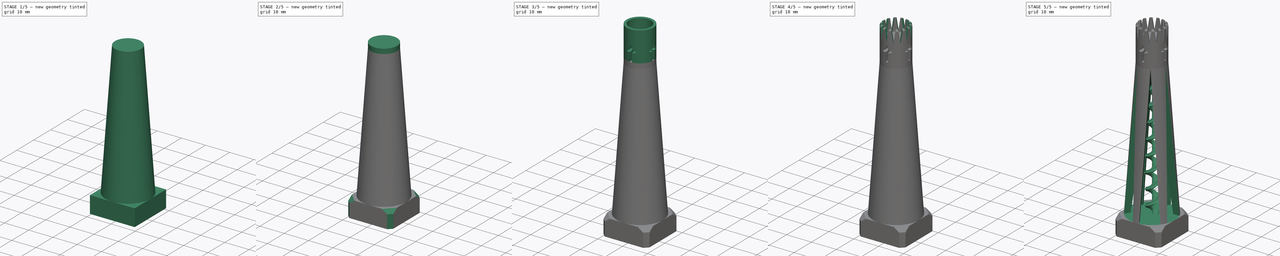
[diagram: build sequence overview — one tinted view per stage of 5, left to right]
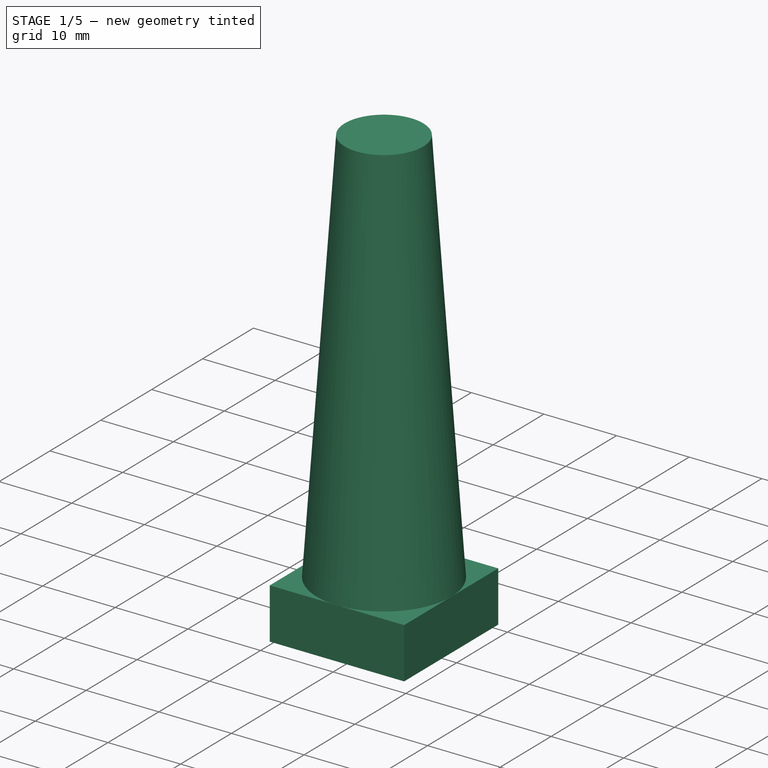
[diagram: stage 1 of 5 — iso view after this stage's code; geometry added in this stage tinted green]
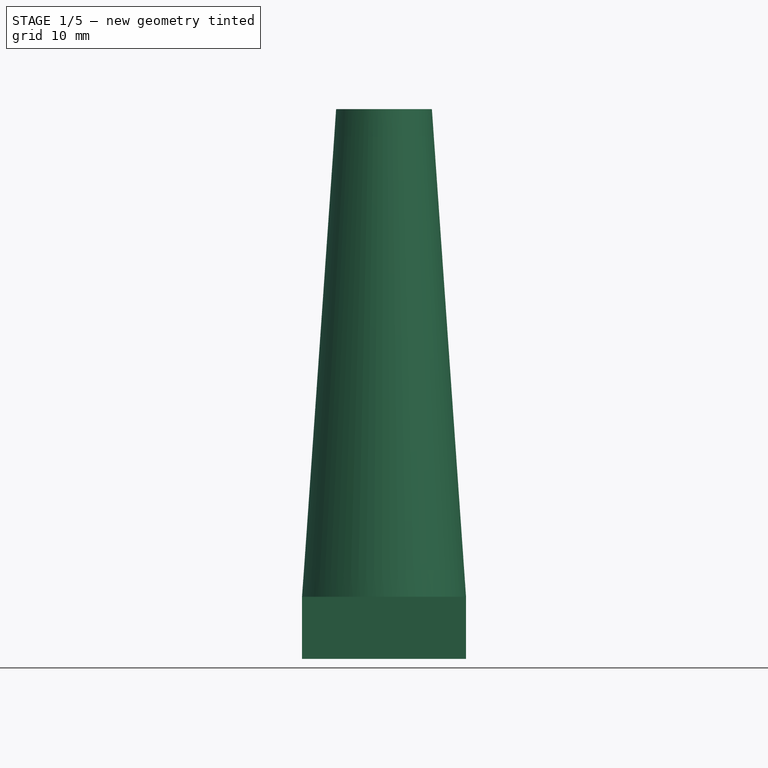
[diagram: stage 1 of 5 — front view after this stage's code; geometry added in this stage tinted green]
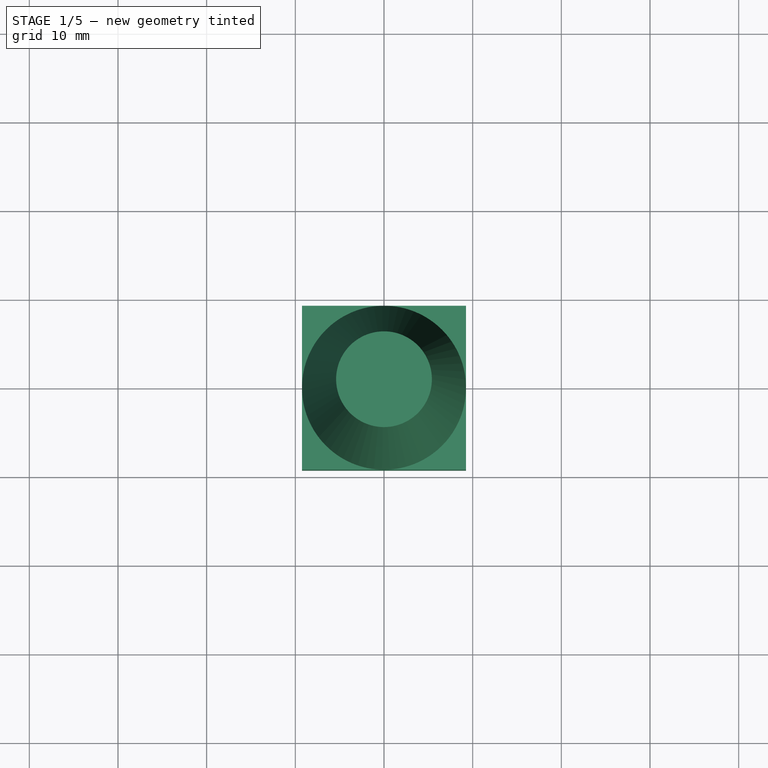
[diagram: stage 1 of 5 — top view after this stage's code; geometry added in this stage tinted green]
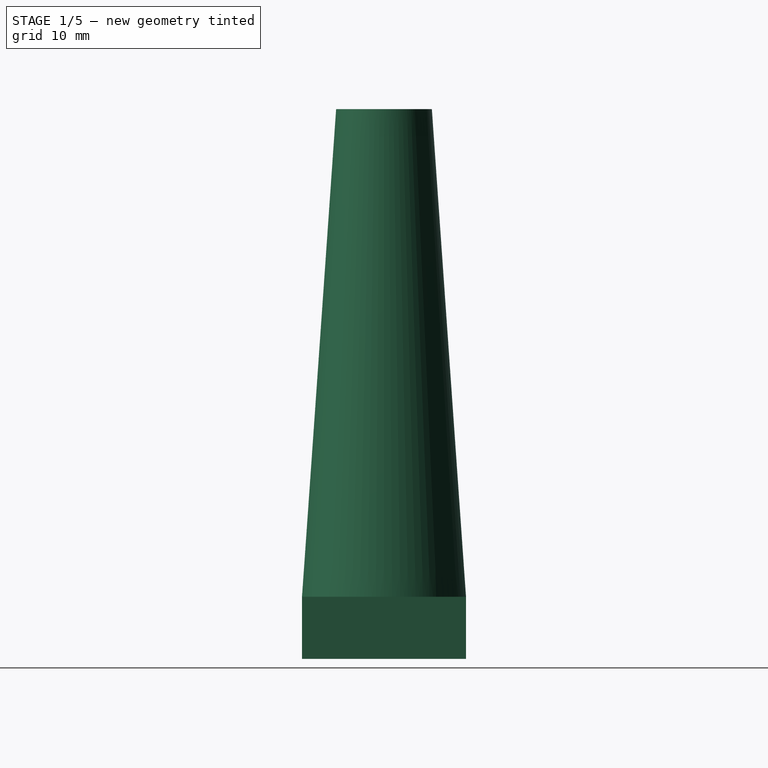
[diagram: stage 1 of 5 — right view after this stage's code; geometry added in this stage tinted green]
FCSTD DOCUMENT  (FreeCAD 0.21R33771 (Git))
Label: NewKing2
License: All rights reserved
LicenseURL: http://en.wikipedia.org/wiki/All_rights_reserved
objects: Sketcher::SketchObject×11, PartDesign::Pad×4, PartDesign::Pocket×4, PartDesign::Chamfer×3, PartDesign::PolarPattern×3, Spreadsheet::Sheet×1, PartDesign::AdditiveLoft×1, PartDesign::AdditiveHelix×1, PartDesign::Body×1, App::Part×1
note: 41 computed .brp shape members not serialized (recipe doc carries the construction recipe); baked Part::Feature solids carry a one-line shape summary decoded from their .brp

FEATURE [Spreadsheet::Sheet] Spreadsheet  label="s"
  cells = A1='base_hole; B1(base_hole)=16; A2='base_clearance; B2(base_clearance)=0.3; A3='base_depth; B3(base_depth)=3.9; A4='base_spacer_depth; B4(base_spacer_depth)=3.1; A5='base_chamfer; B5(base_chamfer)=1.5; A6='base_total_depth; B6(base_total_depth)==B3 + base_spacer_depth * 2; A8='body_height; B8(body_height)=55; A10='base_wall; B10(base_wall)=2.5; A12='loft_top; B12(loft_top)=2; A14='platform_diameter; B14(platform_diameter)=10.8; A15='platform_offset; B15(platform_offset)=2.09; A16='platform_depth; B16(platform_depth)=2; A17='tower_space; B17(tower_space)=7
FEATURE [Sketcher::SketchObject] Sketch
  FullyConstrained = true
  MapMode = 5
  expr: Constraints[10] = <<s>>.base_hole + <<s>>.base_wall
  expr: Constraints[11] = <<s>>.base_hole + <<s>>.base_wall
  expr: Constraints[1] = <<s>>.base_hole + <<s>>.base_clearance
  sketch-geometry (5):
    g0: Circle CenterX=0 CenterY=0 CenterZ=0 NormalX=0 NormalY=0 NormalZ=1 AngleXU=0 Radius=8.15
    g1: LineSegment StartX=-9.25 StartY=9.25 StartZ=0 EndX=9.25 EndY=9.25 EndZ=0
    g2: LineSegment StartX=9.25 StartY=9.25 StartZ=0 EndX=9.25 EndY=-9.25 EndZ=0
    g3: LineSegment StartX=9.25 StartY=-9.25 StartZ=0 EndX=-9.25 EndY=-9.25 EndZ=0
    g4: LineSegment StartX=-9.25 StartY=-9.25 StartZ=0 EndX=-9.25 EndY=9.25 EndZ=0
  constraints (13):
    c: Coincident(g0,g-1)
    c: Diameter(g0) = 16.3
    c: Coincident(g1,g2)
    c: Coincident(g2,g3)
    c: Coincident(g3,g4)
    c: Coincident(g4,g1)
    c: Horizontal(g1)
    c: Horizontal(g3)
    c: Vertical(g2)
    c: Vertical(g4)
    c: DistanceY(g4,g4) = 18.5
    c: DistanceX(g1,g1) = 18.5
    c: Symmetric(g1,g3,g0)
FEATURE [PartDesign::Pad] Pad  label="BasePad"
  Direction = (0,0,1)
  Length = 3.9
  Length2 = 10
  Profile = -> Sketch
  ReferenceAxis = -> Sketch [N_Axis]
  Type = 0
  expr: Length = <<s>>.base_depth
FEATURE [Sketcher::SketchObject] Sketch001
  FullyConstrained = true
  MapMode = 5
  Placement = pos=(0,0,3.9) rot=(0,0,1;0rad)
  Support = -> [Pad]
  expr: Constraints[8] = <<s>>.base_hole + <<s>>.base_wall
  expr: Constraints[9] = <<s>>.base_hole + <<s>>.base_wall
  sketch-geometry (4):
    g0: LineSegment StartX=-9.25 StartY=9.25 StartZ=0 EndX=9.25 EndY=9.25 EndZ=0
    g1: LineSegment StartX=9.25 StartY=9.25 StartZ=0 EndX=9.25 EndY=-9.25 EndZ=0
    g2: LineSegment StartX=9.25 StartY=-9.25 StartZ=0 EndX=-9.25 EndY=-9.25 EndZ=0
    g3: LineSegment StartX=-9.25 StartY=-9.25 StartZ=0 EndX=-9.25 EndY=9.25 EndZ=0
  constraints (11):
    c: Coincident(g0,g1)
    c: Coincident(g1,g2)
    c: Coincident(g2,g3)
    c: Coincident(g3,g0)
    c: Horizontal(g0)
    c: Horizontal(g2)
    c: Vertical(g1)
    c: Vertical(g3)
    c: DistanceY(g3,g3) = 18.5
    c: DistanceX(g0,g0) = 18.5
    c: Symmetric(g0,g2,g-1)
FEATURE [PartDesign::Pad] Pad001  label="BaseTopper"
  BaseFeature = -> Pad
  Direction = (0,0,1)
  Length = 3.1
  Length2 = 10
  Profile = -> Sketch001
  ReferenceAxis = -> Sketch001 [N_Axis]
  Type = 0
  expr: Length = <<s>>.base_spacer_depth
FEATURE [Sketcher::SketchObject] Sketch002
  FullyConstrained = true
  MapMode = 5
  Placement = pos=(0,0,7) rot=(0,0,1;0rad)
  Support = -> [Pad001]
  expr: Constraints[1] = <<s>>.base_hole + <<s>>.base_wall
  sketch-geometry (1):
    g0: Circle CenterX=0 CenterY=0 CenterZ=0 NormalX=0 NormalY=0 NormalZ=1 AngleXU=0 Radius=9.25
  constraints (2):
    c: Coincident(g0,g-1)
    c: Diameter(g0) = 18.5
FEATURE [Sketcher::SketchObject] Sketch003
  AttachmentOffset = pos=(0,0,55) rot=(0,0,1;0rad)
  FullyConstrained = true
  MapMode = 5
  Placement = pos=(0,0,62) rot=(0,0,1;0rad)
  Support = -> [Pad001]
  expr: .AttachmentOffset.Base.z = Spreadsheet.body_height
  expr: Constraints[1] = <<s>>.platform_diameter
  sketch-geometry (1):
    g0: Circle CenterX=0 CenterY=0 CenterZ=0 NormalX=0 NormalY=0 NormalZ=1 AngleXU=0 Radius=5.4
  constraints (2):
    c: Coincident(g0,g-1)
    c: Diameter(g0) = 10.8
FEATURE [PartDesign::AdditiveLoft] AdditiveLoft  label="TowerRise"
  BaseFeature = -> Pad001
  Closed = false
  Profile = -> Sketch002
  Ruled = false
  Sections = -> [Sketch003]
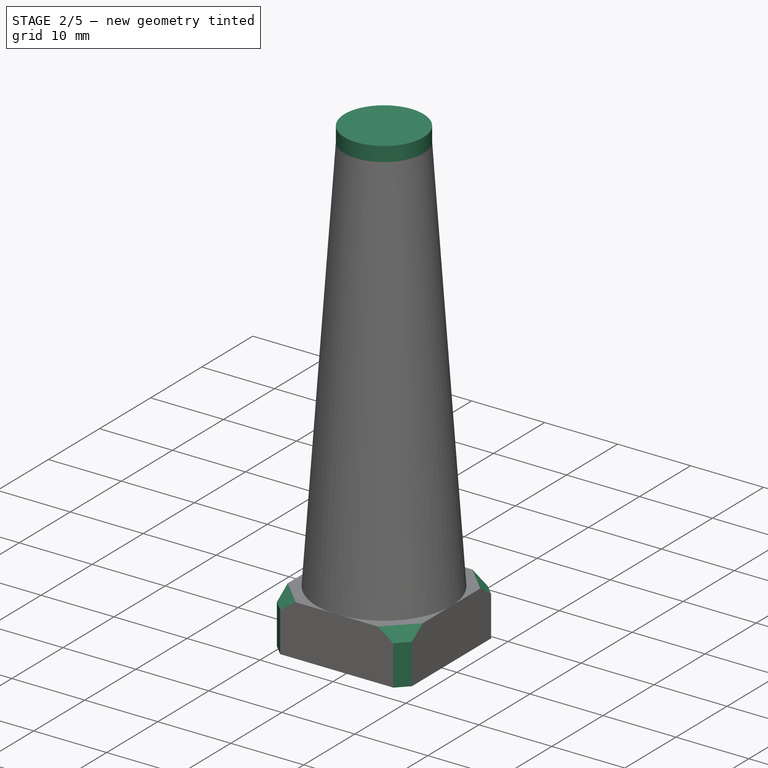
[diagram: stage 2 of 5 — iso view after this stage's code; geometry added in this stage tinted green]
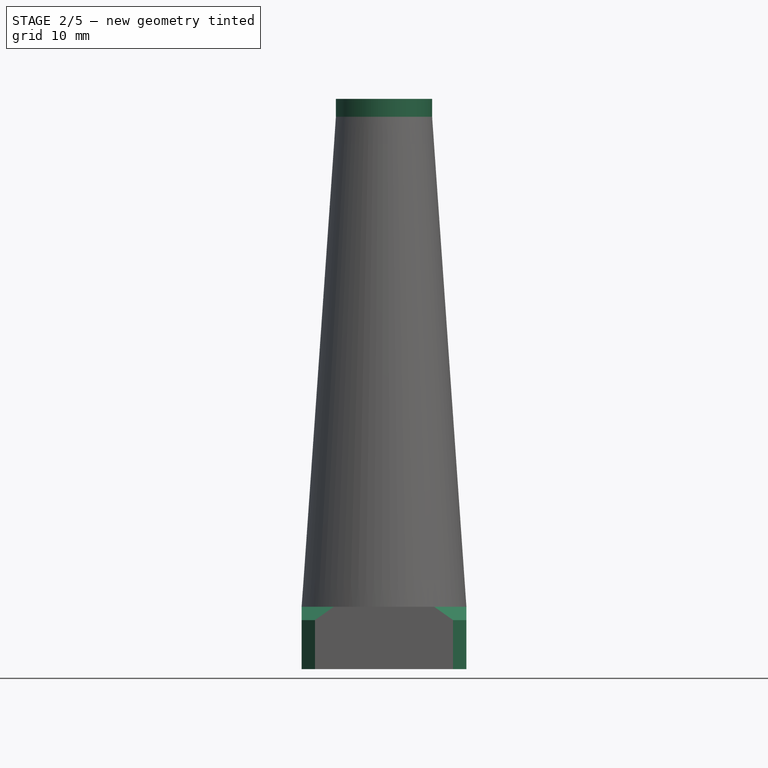
[diagram: stage 2 of 5 — front view after this stage's code; geometry added in this stage tinted green]
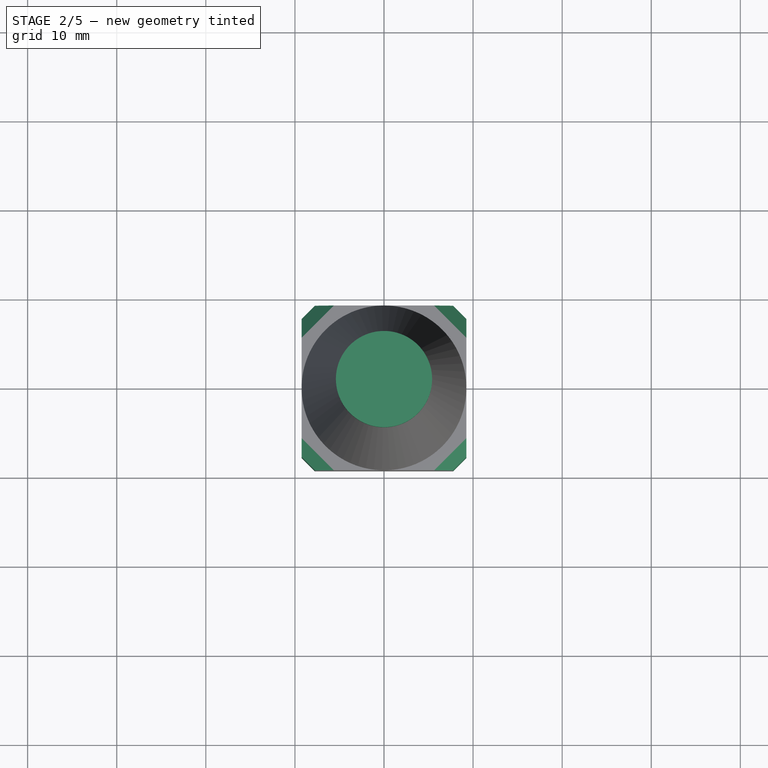
[diagram: stage 2 of 5 — top view after this stage's code; geometry added in this stage tinted green]
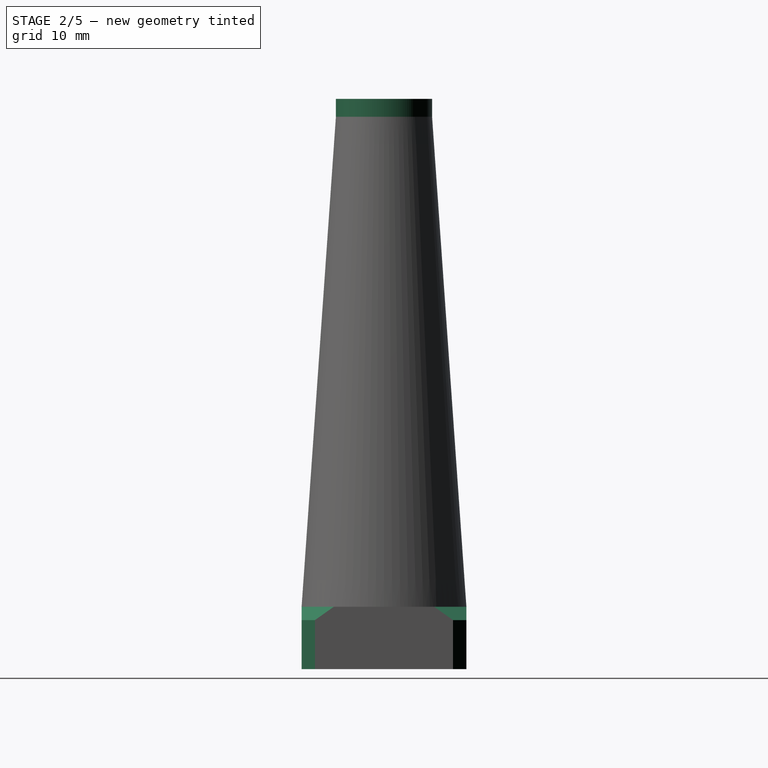
[diagram: stage 2 of 5 — right view after this stage's code; geometry added in this stage tinted green]
FEATURE [Sketcher::SketchObject] Sketch005
  FullyConstrained = true
  MapMode = 5
  Placement = pos=(0,0,62) rot=(0,0,1;0rad)
  expr: Constraints[1] = <<s>>.platform_diameter
  sketch-geometry (1):
    g0: Circle CenterX=0 CenterY=0 CenterZ=0 NormalX=0 NormalY=0 NormalZ=1 AngleXU=0 Radius=5.4
  constraints (2):
    c: Coincident(g0,g-1)
    c: Diameter(g0) = 10.8
FEATURE [PartDesign::Pad] Pad002  label="PlatformPad"
  BaseFeature = -> AdditiveLoft
  Direction = (0,0,1)
  Length = 2
  Length2 = 10
  Profile = -> Sketch005
  ReferenceAxis = -> Sketch005 [N_Axis]
  Type = 0
  expr: Length = <<s>>.platform_depth
FEATURE [PartDesign::Chamfer] Chamfer  label="BaseEdgeChamfer"
  Angle = 45
  Base = -> Pad002 [Edge8,Edge21,Edge18,Edge5,Edge1,Edge13,Edge2,Edge14]
  BaseFeature = -> Pad002
  ChamferType = 0
  FlipDirection = false
  Size = 1.5
  Size2 = 1
  SupportTransform = false
  UseAllEdges = false
  expr: Size = <<s>>.base_chamfer
FEATURE [PartDesign::Chamfer] Chamfer001  label="BaseTopEdgeChamfer"
  Angle = 45
  Base = -> Chamfer [Edge35,Edge33,Edge47,Edge45]
  BaseFeature = -> Chamfer
  ChamferType = 0
  FlipDirection = false
  Size = 1.5
  Size2 = 1
  SupportTransform = false
  UseAllEdges = false
  expr: Size = <<s>>.base_chamfer
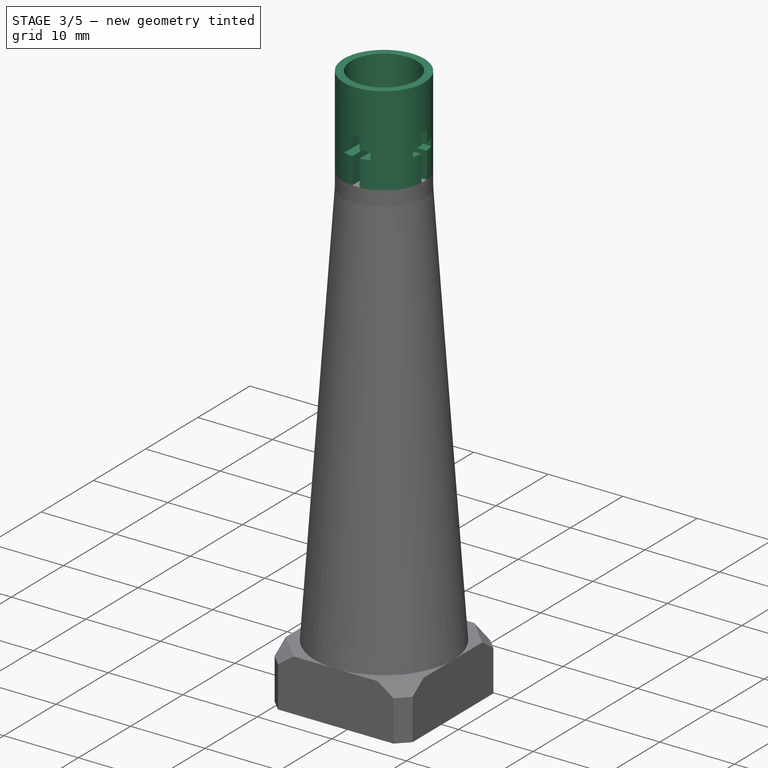
[diagram: stage 3 of 5 — iso view after this stage's code; geometry added in this stage tinted green]
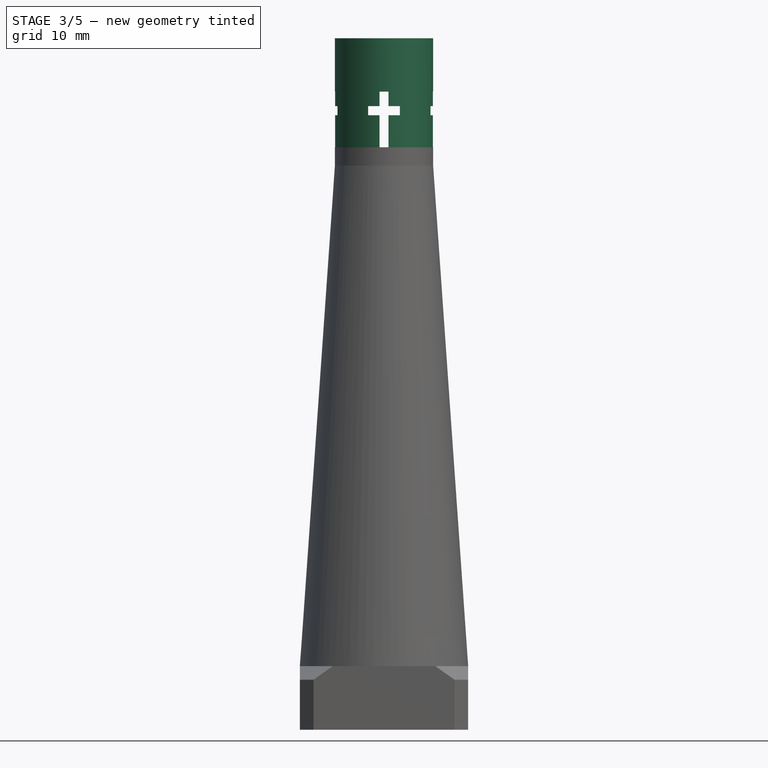
[diagram: stage 3 of 5 — front view after this stage's code; geometry added in this stage tinted green]
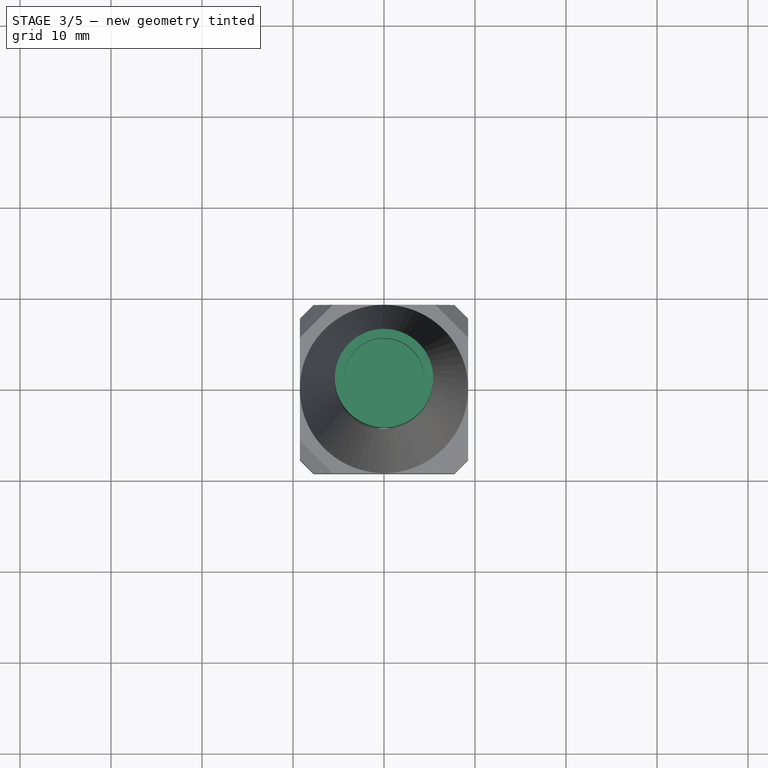
[diagram: stage 3 of 5 — top view after this stage's code; geometry added in this stage tinted green]
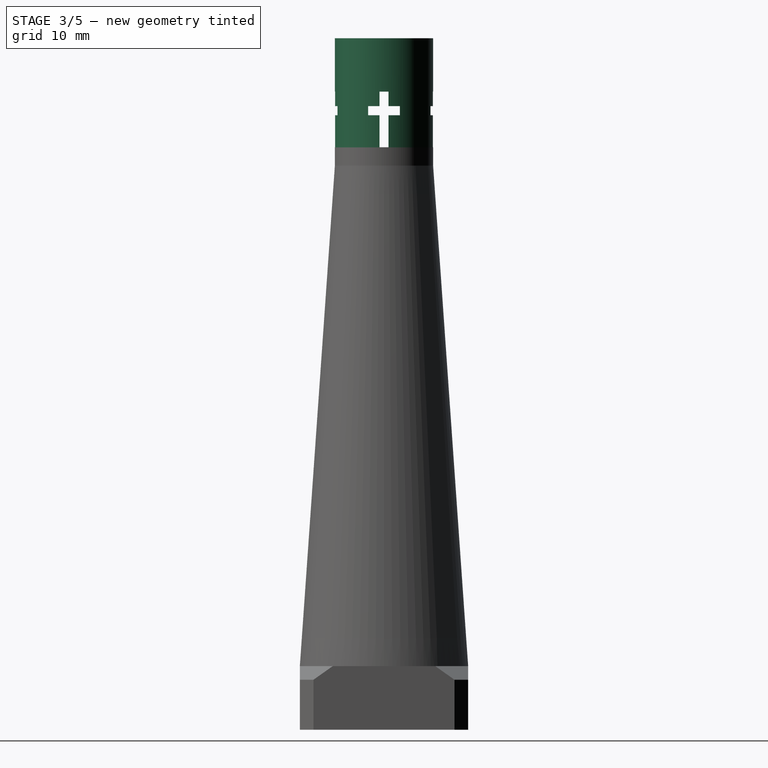
[diagram: stage 3 of 5 — right view after this stage's code; geometry added in this stage tinted green]
FEATURE [Sketcher::SketchObject] Sketch006
  FullyConstrained = true
  MapMode = 5
  Placement = pos=(0,0,64) rot=(0,0,1;0rad)
  Support = -> [Chamfer001]
  expr: Constraints[1] = <<s>>.platform_diameter
  sketch-geometry (1):
    g0: Circle CenterX=0 CenterY=0 CenterZ=0 NormalX=0 NormalY=0 NormalZ=1 AngleXU=0 Radius=5.4
  constraints (2):
    c: Coincident(g0,g-1)
    c: Diameter(g0) = 10.8
FEATURE [PartDesign::Pad] Pad003  label="KingsCrownPad"
  BaseFeature = -> Chamfer001
  Direction = (0,0,1)
  Length = 12
  Length2 = 10
  Profile = -> Sketch006
  ReferenceAxis = -> Sketch006 [N_Axis]
  Type = 0
FEATURE [Sketcher::SketchObject] Sketch011
  FullyConstrained = true
  MapMode = 5
  Placement = pos=(-9.25,0,0) rot=(0.57735,-0.57735,-0.57735;2.0944rad)
  Support = -> [Pad003]
  sketch-geometry (12):
    g0: LineSegment StartX=-0.5 StartY=70.126 StartZ=0 EndX=0.5 EndY=70.126 EndZ=0
    g1: LineSegment StartX=0.5 StartY=70.126 StartZ=0 EndX=0.5 EndY=68.536 EndZ=0
    g2: LineSegment StartX=0.5 StartY=64.012 StartZ=0 EndX=-0.5 EndY=64.012 EndZ=0
    g3: LineSegment StartX=-0.5 StartY=64.012 StartZ=0 EndX=-0.5 EndY=67.536 EndZ=0
    g4: LineSegment StartX=-1.75 StartY=68.536 StartZ=0 EndX=-0.5 EndY=68.536 EndZ=0
    g5: LineSegment StartX=1.75 StartY=68.536 StartZ=0 EndX=1.75 EndY=67.536 EndZ=0
    g6: LineSegment StartX=1.75 StartY=67.536 StartZ=0 EndX=0.5 EndY=67.536 EndZ=0
    g7: LineSegment StartX=-1.75 StartY=67.536 StartZ=0 EndX=-1.75 EndY=68.536 EndZ=0
    g8: LineSegment StartX=0.5 StartY=68.536 StartZ=0 EndX=1.75 EndY=68.536 EndZ=0
    g9: LineSegment StartX=0.5 StartY=67.536 StartZ=0 EndX=0.5 EndY=64.012 EndZ=0
    g10: LineSegment StartX=-0.5 StartY=68.536 StartZ=0 EndX=-0.5 EndY=70.126 EndZ=0
    g11: LineSegment StartX=-0.5 StartY=67.536 StartZ=0 EndX=-1.75 EndY=67.536 EndZ=0
  constraints (36):
    c: Coincident(g0,g1)
    c: Coincident(g9,g2)
    c: Coincident(g2,g3)
    c: Coincident(g10,g0)
    c: Horizontal(g0)
    c: Horizontal(g2)
    c: Vertical(g1)
    c: Vertical(g3)
    c: Coincident(g8,g5)
    c: Coincident(g5,g6)
    c: Coincident(g11,g7)
    c: Coincident(g7,g4)
    c: Horizontal(g4)
    c: Horizontal(g6)
    c: Vertical(g5)
    c: Vertical(g7)
    c: Coincident(g1,g8)
    c: Coincident(g10,g4)
    c: Coincident(g6,g9)
    c: Coincident(g11,g3)
    c: DistanceY(g10,g10) = 1.59
    c: DistanceY(g1,g1) = 1.59
    c: DistanceY(g5,g5) = 1
    c: DistanceY(g9,g9) = 3.524
    c: DistanceY(g3,g3) = 3.524
    c: DistanceY(g7,g7) = 1
    c: DistanceX(g0,g0) = 1
    c: DistanceX(g8,g8) = 1.25
    c: DistanceX(g6,g6) = 1.25
    c: DistanceX(g2,g2) = 1
    c: DistanceX(g11,g11) = 1.25
    c: DistanceX(g4,g4) = 1.25
    c: DistanceX(g0,g4) = 0
    c: DistanceY(g7,g3) = 0
    c: DistanceX(g0,g-1) = 0.5
    c: DistanceY(g-1,g2) = 64.012
FEATURE [PartDesign::Pocket] Pocket001  label="CrossPocket1"
  BaseFeature = -> Pad003
  Direction = (1,0,0)
  Length = 5
  Length2 = 5
  Profile = -> Sketch011
  ReferenceAxis = -> Sketch011 [N_Axis]
  Type = 1
FEATURE [PartDesign::PolarPattern] PolarPattern  label="CrossPolarPattern"
  Angle = 360
  Axis = -> Z_Axis001
  BaseFeature = -> Pocket001
  Occurrences = 4
  Originals = -> [Pocket001]
FEATURE [Sketcher::SketchObject] Sketch012
  FullyConstrained = true
  MapMode = 5
  Placement = pos=(0,0,76) rot=(0,0,1;0rad)
  Support = -> [PolarPattern]
  expr: Constraints[1] = <<s>>.platform_diameter - 2
  sketch-geometry (1):
    g0: Circle CenterX=0 CenterY=0 CenterZ=0 NormalX=0 NormalY=0 NormalZ=1 AngleXU=0 Radius=4.4
  constraints (2):
    c: Coincident(g0,g-1)
    c: Diameter(g0) = 8.8
FEATURE [PartDesign::Pocket] Pocket002  label="CrownPocket"
  BaseFeature = -> PolarPattern
  Direction = (0,0,-1)
  Length = 5
  Length2 = 5
  Profile = -> Sketch012
  ReferenceAxis = -> Sketch012 [N_Axis]
  Type = 0
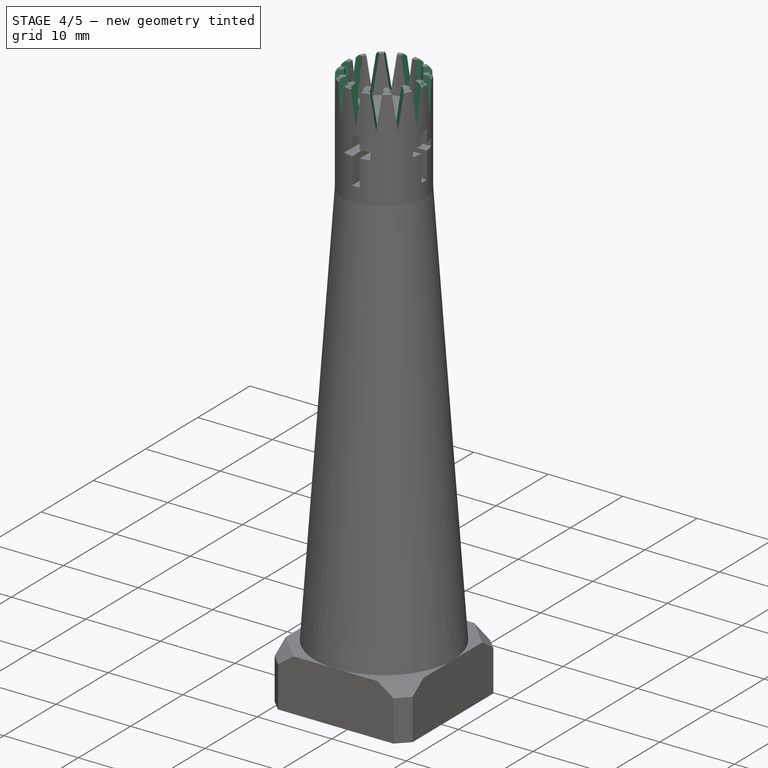
[diagram: stage 4 of 5 — iso view after this stage's code; geometry added in this stage tinted green]
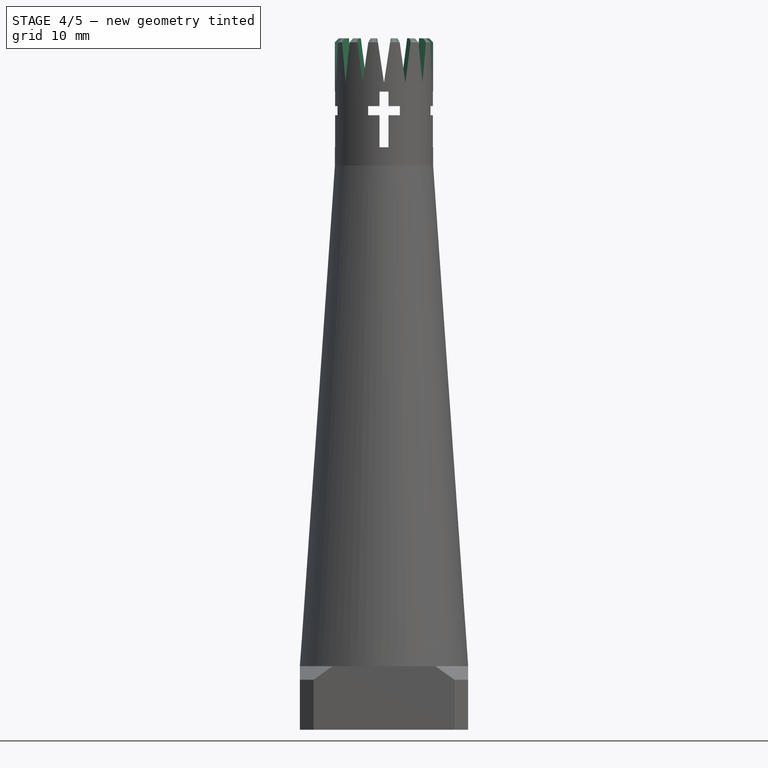
[diagram: stage 4 of 5 — front view after this stage's code; geometry added in this stage tinted green]
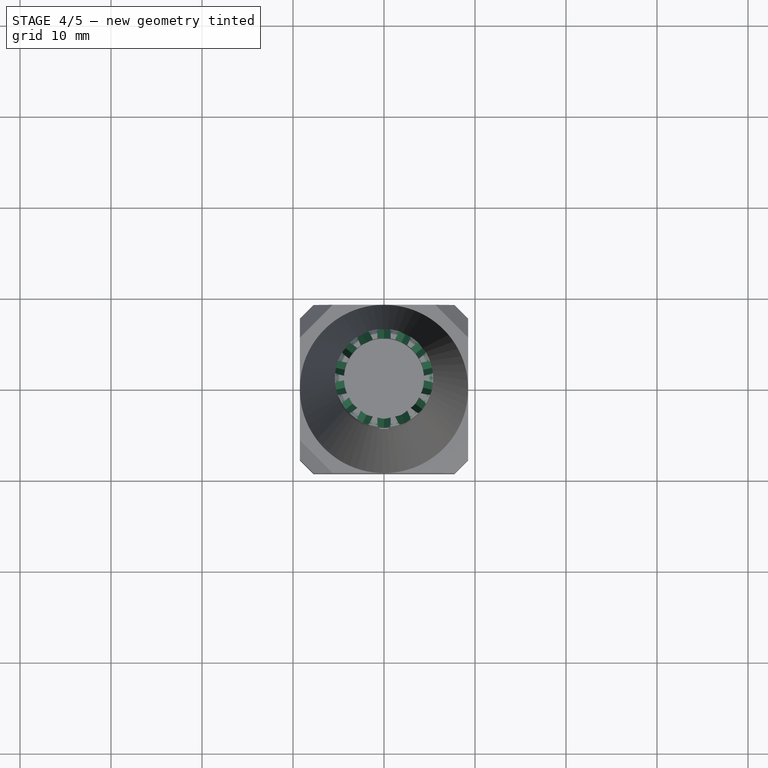
[diagram: stage 4 of 5 — top view after this stage's code; geometry added in this stage tinted green]
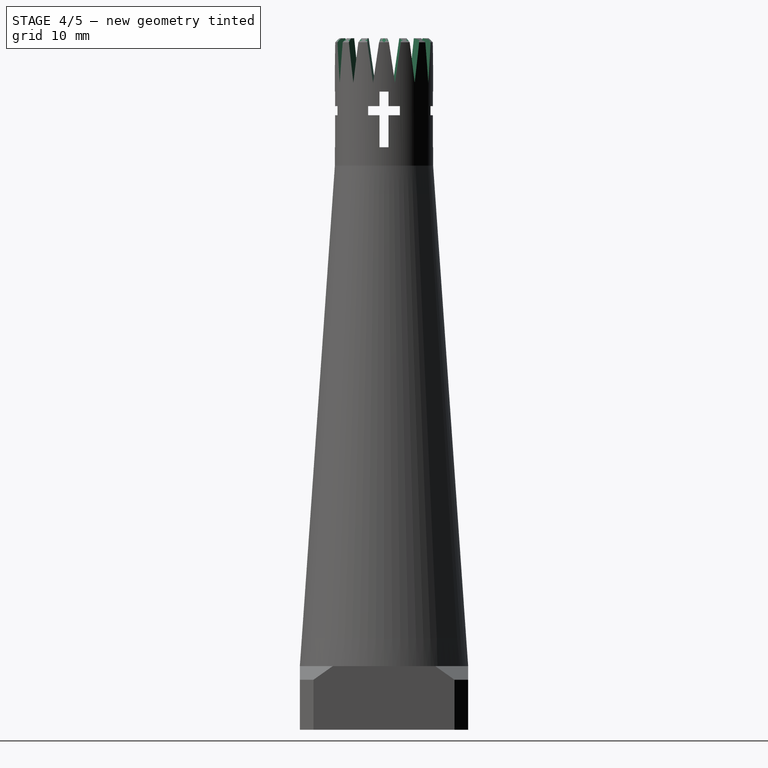
[diagram: stage 4 of 5 — right view after this stage's code; geometry added in this stage tinted green]
FEATURE [Sketcher::SketchObject] Sketch013
  FullyConstrained = true
  MapMode = 5
  Placement = pos=(0,9.25,0) rot=(0,0.707107,0.707107;3.14159rad)
  Support = -> [Pocket002]
  sketch-geometry (3):
    g0: LineSegment StartX=1e-16 StartY=71.109 StartZ=0 EndX=-0.75 EndY=76.109 EndZ=0
    g1: LineSegment StartX=-0.75 StartY=76.109 StartZ=0 EndX=0.75 EndY=76.109 EndZ=0
    g2: LineSegment StartX=0.75 StartY=76.109 StartZ=0 EndX=1e-16 EndY=71.109 EndZ=0
  constraints (9):
    c: PointOnObject(g0,g-2)
    c: Coincident(g0,g1)
    c: Horizontal(g1)
    c: Coincident(g1,g2)
    c: Coincident(g2,g0)
    c: DistanceX(g1,g1) = 1.5
    c: DistanceX(g0,g-1) = 0.75
    c: DistanceY(g0,g1) = 5
    c: DistanceY(g-1,g0) = 76.109
FEATURE [PartDesign::Pocket] Pocket003  label="CrownNotchPocket"
  BaseFeature = -> Pocket002
  Direction = (0,-1,2e-16)
  Length = 5
  Length2 = 5
  Profile = -> Sketch013
  ReferenceAxis = -> Sketch013 [N_Axis]
  Type = 1
FEATURE [PartDesign::PolarPattern] PolarPattern001  label="CrownNotchPolarPattern"
  Angle = 360
  Axis = -> Z_Axis001
  BaseFeature = -> Pocket003
  Occurrences = 7
  Originals = -> [Pocket003]
FEATURE [PartDesign::Chamfer] Chamfer002  label="CrownChamfer"
  Angle = 45
  Base = -> PolarPattern001 [Edge107,Edge104,Edge101,Edge98,Edge95,Edge92,Edge89,Edge86,Edge83,Edge80,Edge110,Edge113,Edge116,Edge77,Edge119]
  BaseFeature = -> PolarPattern001
  ChamferType = 0
  FlipDirection = false
  Size = 0.45
  Size2 = 1
  SupportTransform = false
  UseAllEdges = false
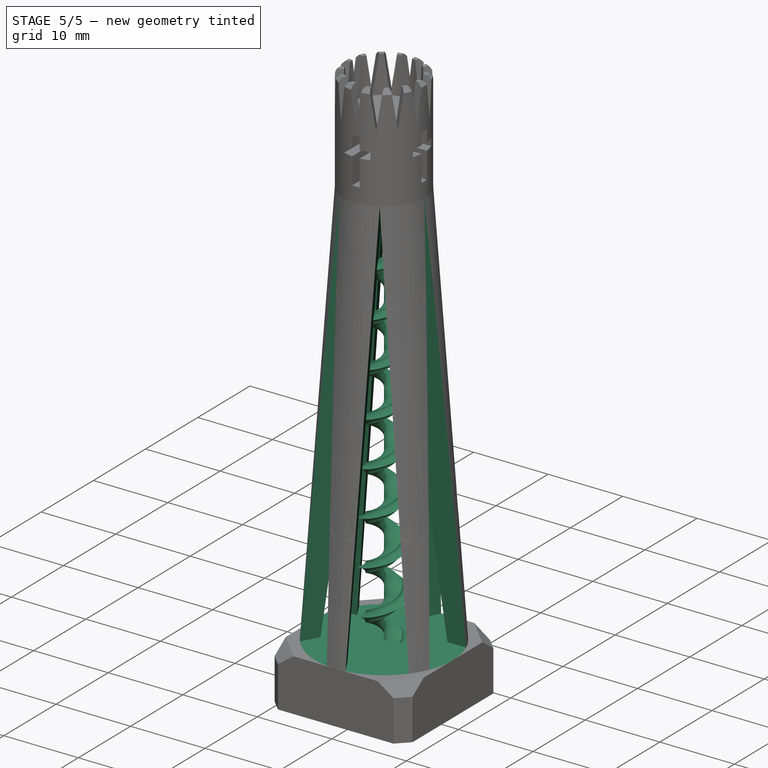
[diagram: stage 5 of 5 — iso view after this stage's code; geometry added in this stage tinted green]
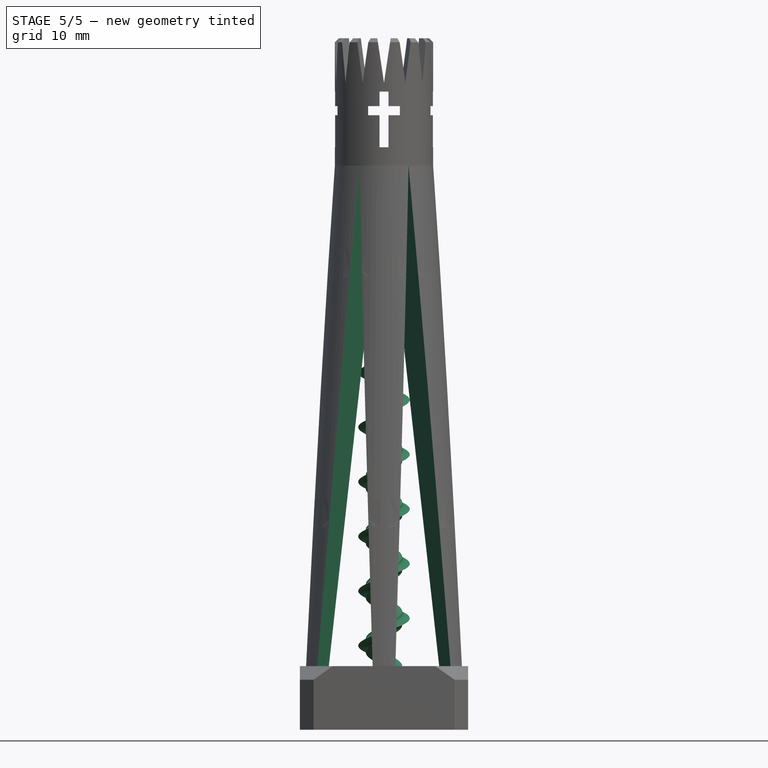
[diagram: stage 5 of 5 — front view after this stage's code; geometry added in this stage tinted green]
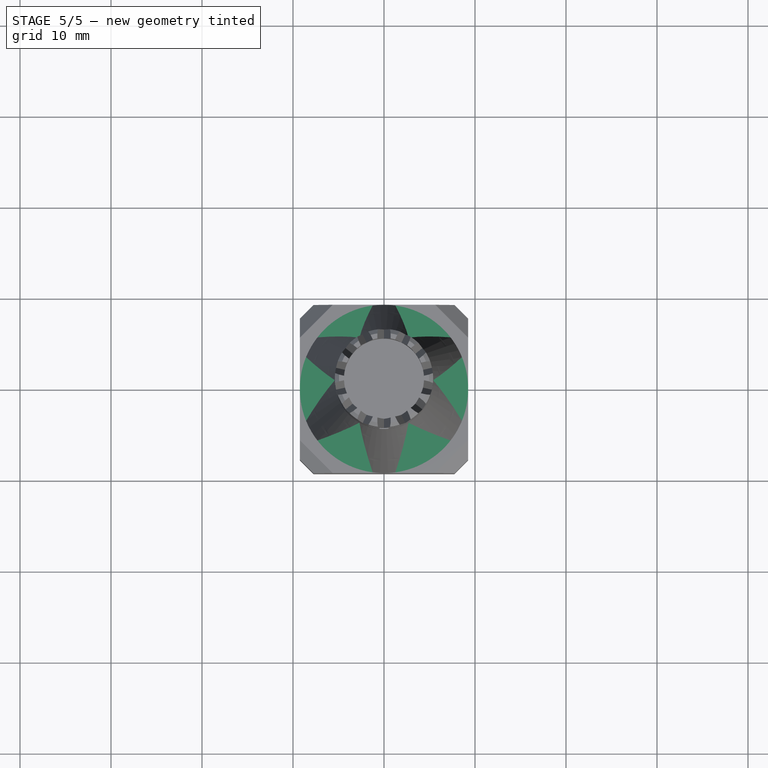
[diagram: stage 5 of 5 — top view after this stage's code; geometry added in this stage tinted green]
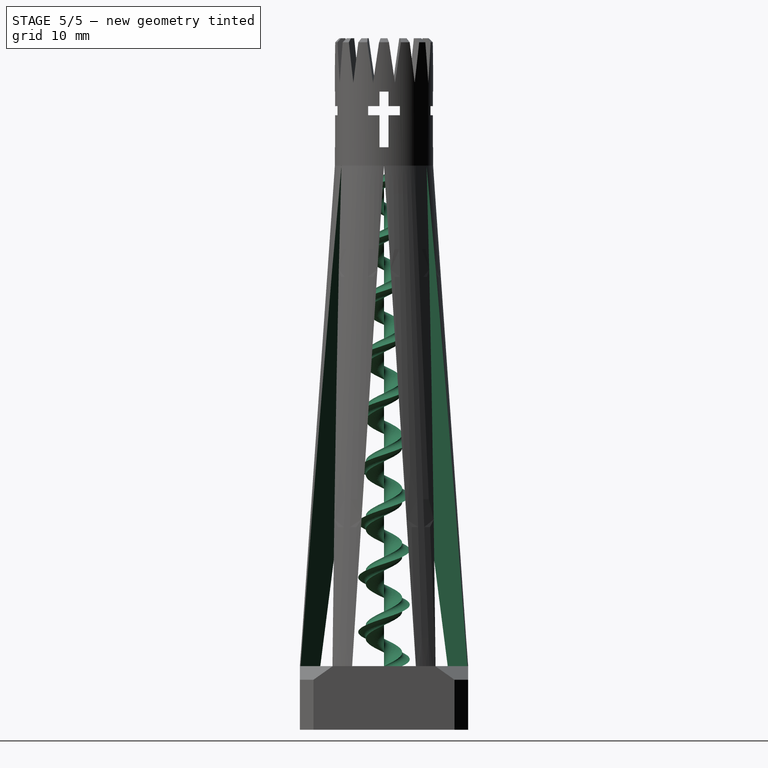
[diagram: stage 5 of 5 — right view after this stage's code; geometry added in this stage tinted green]
FEATURE [Sketcher::SketchObject] Sketch014
  FullyConstrained = true
  MapMode = 5
  Placement = pos=(9.25,0,0) rot=(0.57735,0.57735,0.57735;2.0944rad)
  Support = -> [Chamfer002]
  expr: Constraints[5] = <<s>>.tower_space
  expr: Constraints[6] = <<s>>.tower_space / 2
  expr: Constraints[7] = <<s>>.body_height
  expr: Constraints[8] = <<s>>.base_depth + <<s>>.base_spacer_depth
  sketch-geometry (3):
    g0: LineSegment StartX=0 StartY=62 StartZ=0 EndX=-3.5 EndY=7 EndZ=0
    g1: LineSegment StartX=-3.5 StartY=7 StartZ=0 EndX=3.5 EndY=7 EndZ=0
    g2: LineSegment StartX=3.5 StartY=7 StartZ=0 EndX=0 EndY=62 EndZ=0
  constraints (9):
    c: PointOnObject(g0,g-2)
    c: Coincident(g0,g1)
    c: Horizontal(g1)
    c: Coincident(g1,g2)
    c: Coincident(g2,g0)
    c: DistanceX(g1,g1) = 7
    c: DistanceX(g0,g-1) = 3.5
    c: DistanceY(g1,g0) = 55
    c: DistanceY(g-1,g0) = 7
FEATURE [PartDesign::Pocket] Pocket  label="TowerSidePocket"
  BaseFeature = -> Chamfer002
  Direction = (-1,0,0)
  Length = 5
  Length2 = 5
  Profile = -> Sketch014
  ReferenceAxis = -> Sketch014 [N_Axis]
  Type = 1
FEATURE [PartDesign::PolarPattern] PolarPattern002  label="TowerPolarPattern"
  Angle = 360
  Axis = -> Z_Axis001
  BaseFeature = -> Pocket
  Occurrences = 3
  Originals = -> [Pocket]
FEATURE [Sketcher::SketchObject] Sketch015
  FullyConstrained = true
  MapMode = 5
  Placement = pos=(0,0,7) rot=(0,0,1;0rad)
  Support = -> [PolarPattern002]
  sketch-geometry (4):
    g0: LineSegment StartX=0 StartY=0 StartZ=0 EndX=2 EndY=0 EndZ=0
    g1: LineSegment StartX=2 StartY=0 StartZ=0 EndX=2 EndY=2 EndZ=0
    g2: LineSegment StartX=2 StartY=2 StartZ=0 EndX=0 EndY=2 EndZ=0
    g3: LineSegment StartX=0 StartY=2 StartZ=0 EndX=0 EndY=0 EndZ=0
  constraints (11):
    c: Coincident(g0,g1)
    c: Coincident(g1,g2)
    c: Coincident(g2,g3)
    c: Coincident(g3,g0)
    c: Horizontal(g0)
    c: Horizontal(g2)
    c: Vertical(g1)
    c: Vertical(g3)
    c: Coincident(g0,g-1)
    c: DistanceY(g1,g1) = 2
    c: DistanceX(g2,g2) = 2
FEATURE [PartDesign::AdditiveHelix] AdditiveHelix
  Angle = 0
  Axis = (1e-16,1e-16,1)
  Base = (0,0,0)
  BaseFeature = -> PolarPattern002
  Growth = 0
  HasBeenEdited = true
  Height = 55
  LeftHanded = false
  Mode = 0
  Outside = false
  Pitch = 6
  Profile = -> Sketch015
  ReferenceAxis = -> Z_Axis001
  Turns = 9.16667
  expr: Height = <<s>>.body_height
FEATURE [PartDesign::Body] Body  label="PieceBody"
  Group = -> [Sketch,Pad,Sketch001,Pad001,Sketch002,Sketch003,AdditiveLoft,Sketch005,Pad002,Chamfer,Chamfer001,Sketch006,Pad003,Sketch011,Pocket001,PolarPattern,Sketch012,Pocket002,Sketch013,Pocket003,PolarPattern001,Chamfer002,Sketch014,Pocket,PolarPattern002,Sketch015,AdditiveHelix]
  Origin = -> Origin001
  Tip = -> AdditiveHelix
FEATURE [App::Part] Part  label="PiecePart"
  Group = -> [Body]
  Origin = -> Origin
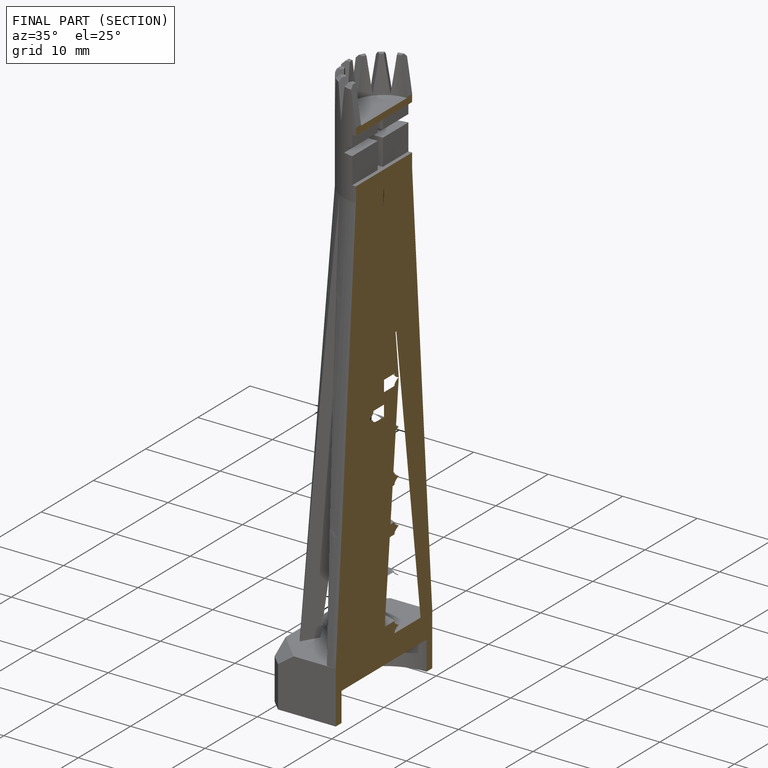
[diagram: finished part — half-section view (interior)]
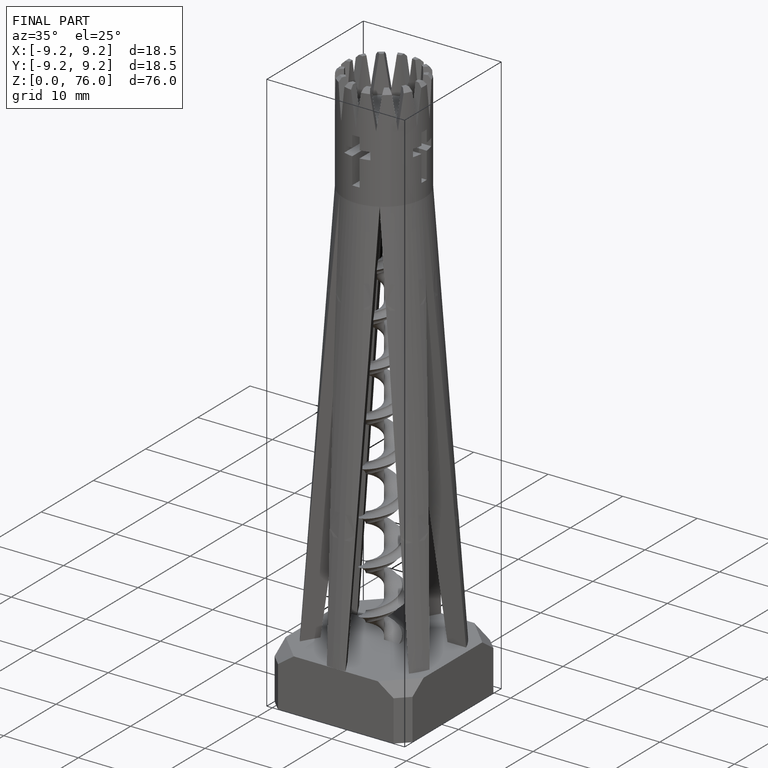
[diagram: finished part — iso view with bounding-box wireframe]
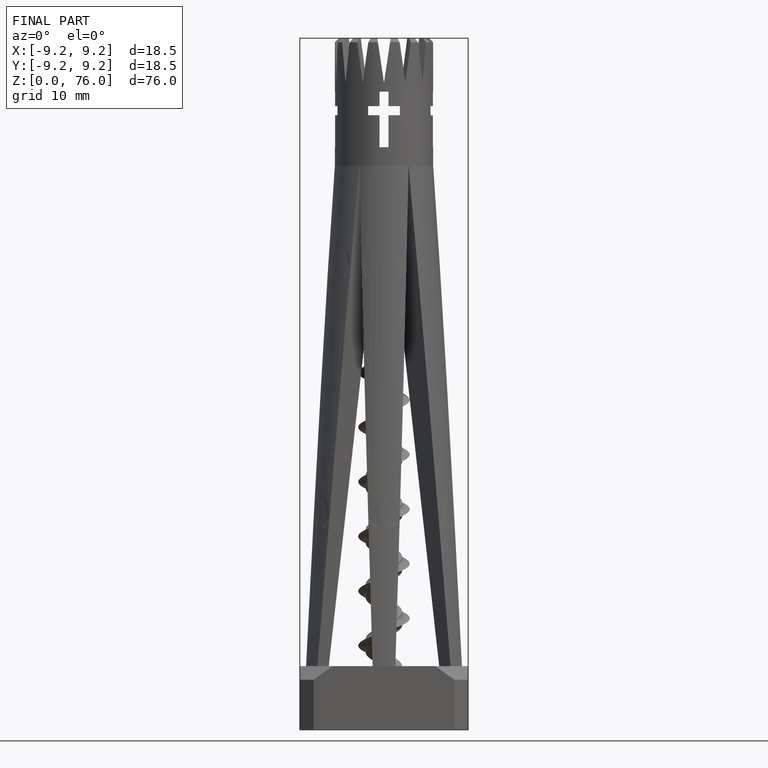
[diagram: finished part — front view with bounding-box wireframe]
